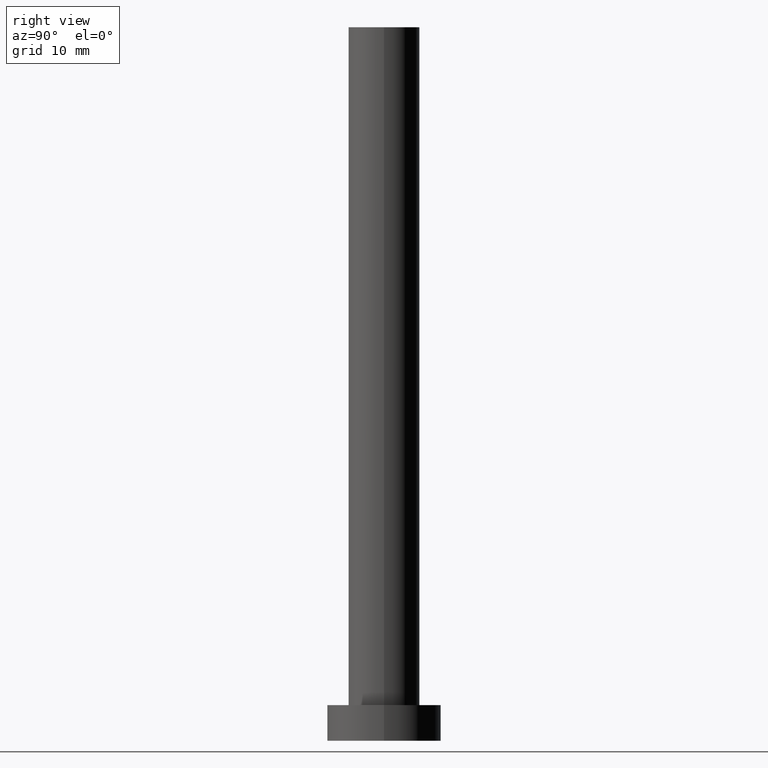
[diagram: clean part render]
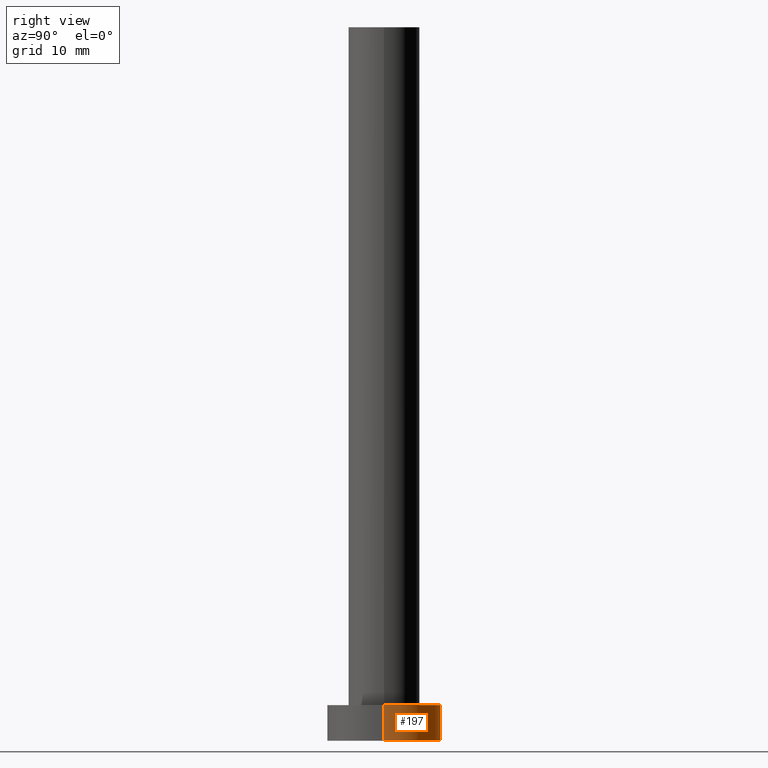
[diagram: same view with one face highlighted and labeled with its STEP entity id]
A machine part, right view. The second image highlights one B-rep face of the part: STEP entity #197.
In plain terms, the highlighted cylindrical surface (partial cylindrical patch) has radius 8 mm, axis along (-0, -0, -1).
Its self-contained STEP definition (entity closure, byte-faithful):
#2 = FACE_OUTER_BOUND ( 'NONE', #200, .T. ) ;
#10 = VECTOR ( 'NONE', #26, 1000.000000000000000 ) ;
#11 = LINE ( 'NONE', #228, #10 ) ;
#14 = CARTESIAN_POINT ( 'NONE',  ( 8.000000000000000000, 9.797174393178825657E-16, 0.000000000000000000 ) ) ;
#21 = VERTEX_POINT ( 'NONE', #14 ) ;
#22 = CARTESIAN_POINT ( 'NONE',  ( -8.000000000000000000, 0.000000000000000000, 5.000000000000000000 ) ) ;
#26 = DIRECTION ( 'NONE',  ( -0.000000000000000000, -0.000000000000000000, -1.000000000000000000 ) ) ;
#27 = DIRECTION ( 'NONE',  ( -0.000000000000000000, -0.000000000000000000, -1.000000000000000000 ) ) ;
#40 = DIRECTION ( 'NONE',  ( 0.000000000000000000, 0.000000000000000000, 1.000000000000000000 ) ) ;
#43 = CARTESIAN_POINT ( 'NONE',  ( 0.000000000000000000, 0.000000000000000000, 0.000000000000000000 ) ) ;
#45 = CARTESIAN_POINT ( 'NONE',  ( -8.000000000000000000, 0.000000000000000000, 0.000000000000000000 ) ) ;
#58 = DIRECTION ( 'NONE',  ( 1.000000000000000000, 0.000000000000000000, 0.000000000000000000 ) ) ;
#60 = CARTESIAN_POINT ( 'NONE',  ( 8.000000000000000000, 9.797174393178825657E-16, 5.000000000000000000 ) ) ;
#75 = ORIENTED_EDGE ( 'NONE', *, *, #224, .T. ) ;
#77 = ORIENTED_EDGE ( 'NONE', *, *, #168, .T. ) ;
#79 = CYLINDRICAL_SURFACE ( 'NONE', #157, 8.000000000000000000 ) ;
#99 = DIRECTION ( 'NONE',  ( 0.000000000000000000, 0.000000000000000000, 1.000000000000000000 ) ) ;
#102 = DIRECTION ( 'NONE',  ( -1.000000000000000000, 0.000000000000000000, 0.000000000000000000 ) ) ;
#118 = CARTESIAN_POINT ( 'NONE',  ( 0.000000000000000000, 0.000000000000000000, 5.000000000000000000 ) ) ;
#126 = LINE ( 'NONE', #22, #227 ) ;
#128 = CARTESIAN_POINT ( 'NONE',  ( 0.000000000000000000, 0.000000000000000000, 5.000000000000000000 ) ) ;
#130 = EDGE_CURVE ( 'NONE', #141, #137, #126, .T. ) ;
#137 = VERTEX_POINT ( 'NONE', #45 ) ;
#141 = VERTEX_POINT ( 'NONE', #218 ) ;
#147 = ORIENTED_EDGE ( 'NONE', *, *, #212, .F. ) ;
#157 = AXIS2_PLACEMENT_3D ( 'NONE', #128, #163, #102 ) ;
#158 = ORIENTED_EDGE ( 'NONE', *, *, #130, .F. ) ;
#163 = DIRECTION ( 'NONE',  ( -0.000000000000000000, -0.000000000000000000, -1.000000000000000000 ) ) ;
#164 = VERTEX_POINT ( 'NONE', #60 ) ;
#168 = EDGE_CURVE ( 'NONE', #21, #137, #180, .T. ) ;
#173 = DIRECTION ( 'NONE',  ( 1.000000000000000000, 0.000000000000000000, 0.000000000000000000 ) ) ;
#180 = CIRCLE ( 'NONE', #242, 8.000000000000000000 ) ;
#197 = ADVANCED_FACE ( 'NONE', ( #2 ), #79, .T. ) ;
#200 = EDGE_LOOP ( 'NONE', ( #147, #75, #77, #158 ) ) ;
#201 = CIRCLE ( 'NONE', #254, 8.000000000000000000 ) ;
#212 = EDGE_CURVE ( 'NONE', #164, #141, #201, .T. ) ;
#218 = CARTESIAN_POINT ( 'NONE',  ( -8.000000000000000000, 0.000000000000000000, 5.000000000000000000 ) ) ;
#224 = EDGE_CURVE ( 'NONE', #164, #21, #11, .T. ) ;
#227 = VECTOR ( 'NONE', #27, 1000.000000000000000 ) ;
#228 = CARTESIAN_POINT ( 'NONE',  ( 8.000000000000000000, 9.797174393178825657E-16, 5.000000000000000000 ) ) ;
#242 = AXIS2_PLACEMENT_3D ( 'NONE', #43, #99, #173 ) ;
#254 = AXIS2_PLACEMENT_3D ( 'NONE', #118, #40, #58 ) ;